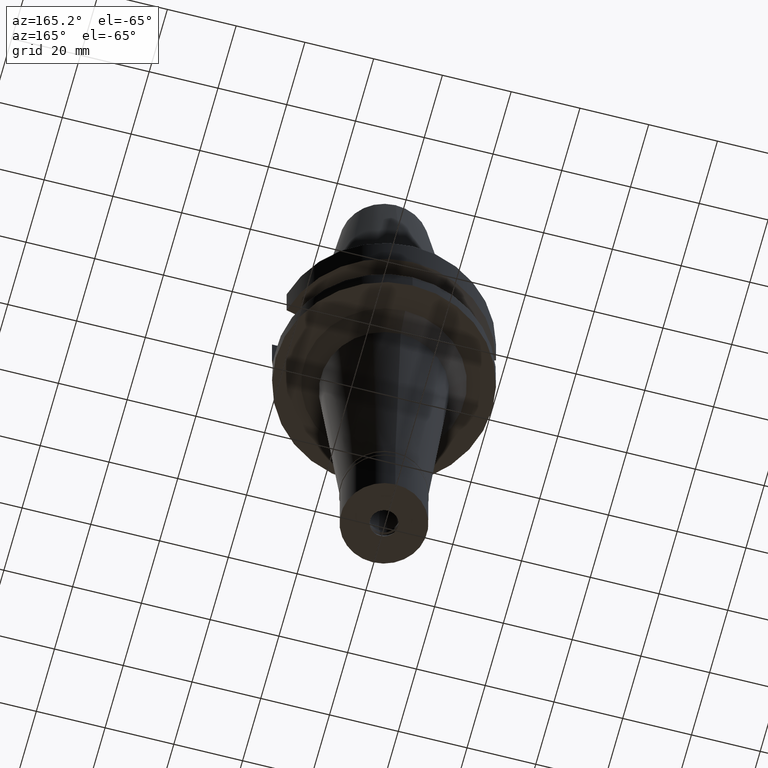
[diagram: clean part render]
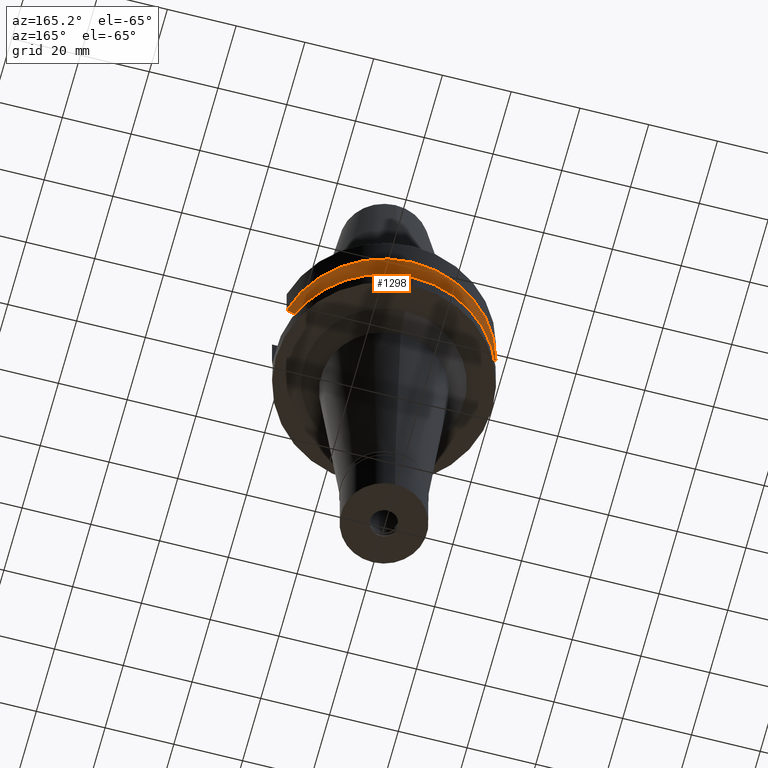
[diagram: same view with one face highlighted and labeled with its STEP entity id]
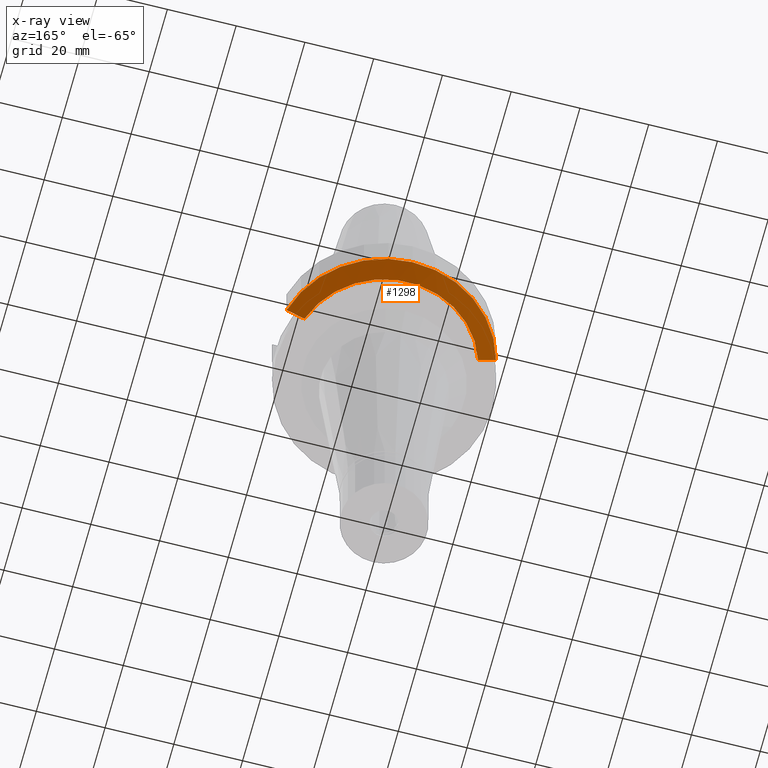
[diagram: x-ray of the same camera — body ghosted, the highlighted face saturated]
A machine part, auxiliary view. The second image highlights one B-rep face of the part: STEP entity #1298.
The next image is the same camera in x-ray: the body ghosted, the highlighted face saturated — about 0% of this face is hidden behind the body in this view.
In plain terms, the highlighted conical surface has half-angle 60 deg.
Its self-contained STEP definition (entity closure, byte-faithful):
#23 = DIRECTION ( 'NONE',  ( 0.0000000000000000000, 1.000000000000000000, 0.0000000000000000000 ) ) ;
#49 = CARTESIAN_POINT ( 'NONE',  ( 0.0000000000000000000, 1.065333950388000029E-14, -13.00888132564000088 ) ) ;
#51 = ORIENTED_EDGE ( 'NONE', *, *, #1347, .T. ) ;
#62 = CARTESIAN_POINT ( 'NONE',  ( -28.57295870745490518, 8.050008282506887269, -12.61547480696670398 ) ) ;
#78 = AXIS2_PLACEMENT_3D ( 'NONE', #266, #1051, #23 ) ;
#95 = EDGE_CURVE ( 'NONE', #842, #157, #690, .T. ) ;
#157 = VERTEX_POINT ( 'NONE', #1704 ) ;
#233 = AXIS2_PLACEMENT_3D ( 'NONE', #49, #1014, #760 ) ;
#266 = CARTESIAN_POINT ( 'NONE',  ( 0.0000000000000000000, 1.065333950388000029E-14, -11.56550565266999975 ) ) ;
#371 = ORIENTED_EDGE ( 'NONE', *, *, #95, .F. ) ;
#485 = VERTEX_POINT ( 'NONE', #1304 ) ;
#552 = CARTESIAN_POINT ( 'NONE',  ( -30.45402162745000041, 8.050004143770999931, -11.56546832735000052 ) ) ;
#690 = CIRCLE ( 'NONE', #1795, 26.50000000000000711 ) ;
#760 = DIRECTION ( 'NONE',  ( 0.0000000000000000000, 1.000000000000000000, 0.0000000000000000000 ) ) ;
#842 = VERTEX_POINT ( 'NONE', #1271 ) ;
#1014 = DIRECTION ( 'NONE',  ( 0.0000000000000000000, 0.0000000000000000000, 1.000000000000000000 ) ) ;
#1051 = DIRECTION ( 'NONE',  ( 0.0000000000000000000, 0.0000000000000000000, 1.000000000000000000 ) ) ;
#1058 = CARTESIAN_POINT ( 'NONE',  ( -25.24772216385000334, 8.050001586139000409, -14.45224487910999933 ) ) ;
#1218 = EDGE_CURVE ( 'NONE', #1348, #157, #2857, .T. ) ;
#1271 = CARTESIAN_POINT ( 'NONE',  ( -25.24772216385000334, 8.050001586139000409, -14.45224487910999933 ) ) ;
#1297 = CARTESIAN_POINT ( 'NONE',  ( -26.83758147642030067, 8.050003175703244196, -13.57772735610109116 ) ) ;
#1298 = ADVANCED_FACE ( 'NONE', ( #2707 ), #1577, .T. ) ;
#1304 = CARTESIAN_POINT ( 'NONE',  ( -30.45402162745000041, 8.050004143770999931, -11.56546832735000052 ) ) ;
#1317 = B_SPLINE_CURVE_WITH_KNOTS ( 'NONE', 3,
 ( #1058, #1297, #62, #552 ),
 .UNSPECIFIED., .F., .F.,
 ( 4, 4 ),
 ( 0.0000000000000000000, 1.000000000000000000 ),
 .UNSPECIFIED. ) ;
#1347 = EDGE_CURVE ( 'NONE', #842, #485, #1317, .T. ) ;
#1348 = VERTEX_POINT ( 'NONE', #1723 ) ;
#1538 = CIRCLE ( 'NONE', #78, 31.50000000000000000 ) ;
#1577 = CONICAL_SURFACE ( 'NONE', #233, 29.00000000000000000, 1.047197551196400456 ) ;
#1690 = CARTESIAN_POINT ( 'NONE',  ( 30.45402291369000025, 8.049999277793000729, -11.56551215744000061 ) ) ;
#1704 = CARTESIAN_POINT ( 'NONE',  ( 25.24772413118999737, 8.049995415851000757, -14.45229202748999953 ) ) ;
#1723 = CARTESIAN_POINT ( 'NONE',  ( 30.45402291369000025, 8.049999277793000729, -11.56551215744000061 ) ) ;
#1795 = AXIS2_PLACEMENT_3D ( 'NONE', #2916, #2428, #2933 ) ;
#1975 = EDGE_LOOP ( 'NONE', ( #2297, #2711, #371, #51 ) ) ;
#2297 = ORIENTED_EDGE ( 'NONE', *, *, #2328, .F. ) ;
#2328 = EDGE_CURVE ( 'NONE', #1348, #485, #1538, .T. ) ;
#2381 = CARTESIAN_POINT ( 'NONE',  ( 28.57292329288736710, 8.049998556526713145, -12.61549605400120377 ) ) ;
#2428 = DIRECTION ( 'NONE',  ( 0.0000000000000000000, 0.0000000000000000000, -1.000000000000000000 ) ) ;
#2664 = CARTESIAN_POINT ( 'NONE',  ( 25.24772413118999737, 8.049995415851000757, -14.45229202748999953 ) ) ;
#2707 = FACE_OUTER_BOUND ( 'NONE', #1975, .T. ) ;
#2711 = ORIENTED_EDGE ( 'NONE', *, *, #1218, .T. ) ;
#2857 = B_SPLINE_CURVE_WITH_KNOTS ( 'NONE', 3,
 ( #1690, #2381, #2923, #2664 ),
 .UNSPECIFIED., .F., .F.,
 ( 4, 4 ),
 ( 0.0000000000000000000, 1.000000000000000000 ),
 .UNSPECIFIED. ) ;
#2916 = CARTESIAN_POINT ( 'NONE',  ( 0.0000000000000000000, 1.065333950388000029E-14, -14.45225699861000024 ) ) ;
#2923 = CARTESIAN_POINT ( 'NONE',  ( 26.83754616257774472, 8.049990821549695141, -13.57774887965973498 ) ) ;
#2933 = DIRECTION ( 'NONE',  ( -0.9527442516822307583, 0.3037735849057093818, 0.0000000000000000000 ) ) ;